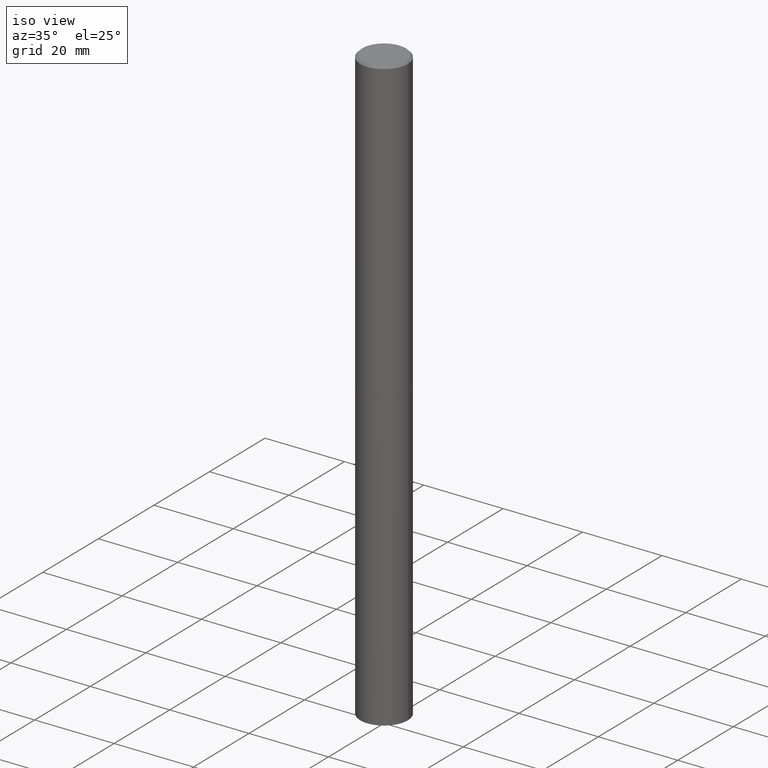
[diagram: clean part render]
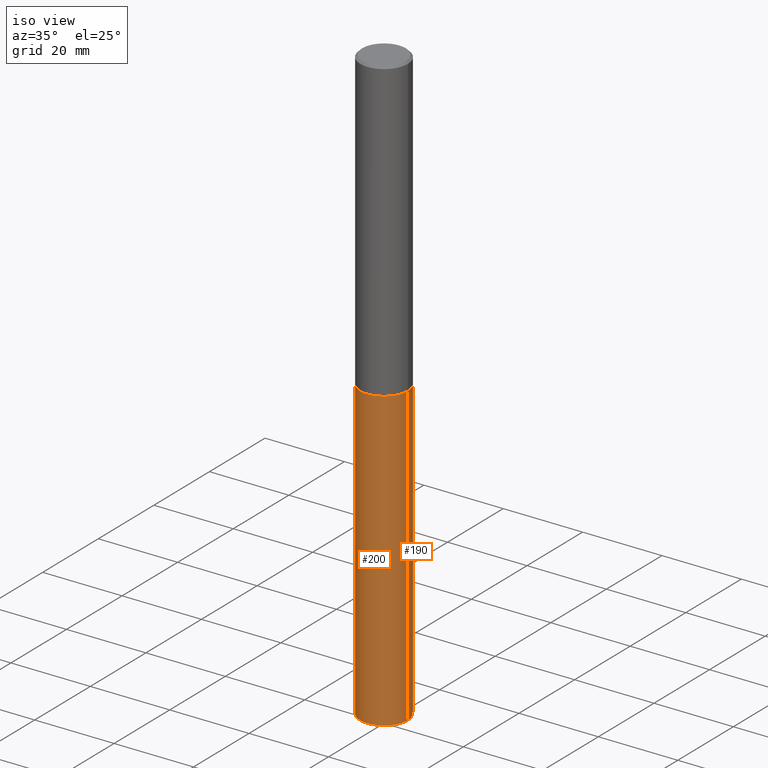
[diagram: same view with one multi-face feature highlighted, each face labeled with its STEP entity id]
A machine part, iso view. The highlighted faces form ONE feature: a constant-radius fillet chain: 2 tangent blend faces with common blend radius 5.9995 mm. The faces share edges in the B-rep.
Their STEP definitions:
[1] entity #200 (Cylinder):
#21 = VECTOR ( 'NONE', #56, 39.37007874015748143 ) ;
#24 = CARTESIAN_POINT ( 'NONE',  ( 0.000000000000000000, 0.000000000000000000, 0.000000000000000000 ) ) ;
#26 = DIRECTION ( 'NONE',  ( -2.445468806185136597E-29, 3.491481338843145583E-15, 1.000000000000000000 ) ) ;
#56 = DIRECTION ( 'NONE',  ( -2.445468806185136877E-29, 3.491481338843145188E-15, 1.000000000000000000 ) ) ;
#59 = AXIS2_PLACEMENT_3D ( 'NONE', #162, #255, #164 ) ;
#63 = EDGE_LOOP ( 'NONE', ( #174, #71, #72, #176 ) ) ;
#71 = ORIENTED_EDGE ( 'NONE', *, *, #147, .T. ) ;
#72 = ORIENTED_EDGE ( 'NONE', *, *, #142, .T. ) ;
#85 = CYLINDRICAL_SURFACE ( 'NONE', #128, 0.2361999999999999933 ) ;
#98 = VERTEX_POINT ( 'NONE', #254 ) ;
#102 = VERTEX_POINT ( 'NONE', #137 ) ;
#116 = LINE ( 'NONE', #138, #21 ) ;
#128 = AXIS2_PLACEMENT_3D ( 'NONE', #24, #328, #306 ) ;
#137 = CARTESIAN_POINT ( 'NONE',  ( 0.2361999999999999933, -1.195867273367164996E-14, -2.952700000000000102 ) ) ;
#138 = CARTESIAN_POINT ( 'NONE',  ( -0.2361999999999999933, 1.678301941865356591E-15, -1.161852468318208757E-29 ) ) ;
#142 = EDGE_CURVE ( 'NONE', #293, #102, #216, .T. ) ;
#147 = EDGE_CURVE ( 'NONE', #171, #293, #187, .T. ) ;
#156 = FACE_OUTER_BOUND ( 'NONE', #63, .T. ) ;
#162 = CARTESIAN_POINT ( 'NONE',  ( 1.444171603492632270E-28, -2.061894304653819197E-14, -5.905499999999999972 ) ) ;
#164 = DIRECTION ( 'NONE',  ( 1.000000000000000000, -6.982962677686273021E-15, 0.000000000000000000 ) ) ;
#166 = CARTESIAN_POINT ( 'NONE',  ( 0.2361999999999999933, -2.226831883100769165E-14, -5.905499999999999972 ) ) ;
#171 = VERTEX_POINT ( 'NONE', #186 ) ;
#174 = ORIENTED_EDGE ( 'NONE', *, *, #273, .F. ) ;
#176 = ORIENTED_EDGE ( 'NONE', *, *, #219, .F. ) ;
#186 = CARTESIAN_POINT ( 'NONE',  ( -0.2361999999999999933, -1.378581805600481631E-14, -5.905499999999999972 ) ) ;
#187 = CIRCLE ( 'NONE', #59, 0.2361999999999999933 ) ;
#200 = ADVANCED_FACE ( 'NONE', ( #156 ), #85, .T. ) ;
#216 = LINE ( 'NONE', #307, #286 ) ;
#218 = DIRECTION ( 'NONE',  ( 1.000000000000000000, -6.982962677686265133E-15, 0.000000000000000000 ) ) ;
#219 = EDGE_CURVE ( 'NONE', #98, #102, #338, .T. ) ;
#250 = DIRECTION ( 'NONE',  ( -2.445468806185136877E-29, 3.491481338843145188E-15, 1.000000000000000000 ) ) ;
#254 = CARTESIAN_POINT ( 'NONE',  ( -0.2361999999999999933, -1.378581805600481631E-14, -2.952700000000000102 ) ) ;
#255 = DIRECTION ( 'NONE',  ( -2.445468806185136597E-29, 3.491481338843145583E-15, 1.000000000000000000 ) ) ;
#273 = EDGE_CURVE ( 'NONE', #171, #98, #116, .T. ) ;
#280 = CARTESIAN_POINT ( 'NONE',  ( 7.220735744022852519E-29, -1.030929694920215502E-14, -2.952700000000000102 ) ) ;
#286 = VECTOR ( 'NONE', #250, 39.37007874015748143 ) ;
#293 = VERTEX_POINT ( 'NONE', #166 ) ;
#306 = DIRECTION ( 'NONE',  ( 1.000000000000000000, -6.982962677686266711E-15, 4.876176775795936353E-29 ) ) ;
#307 = CARTESIAN_POINT ( 'NONE',  ( 0.2361999999999999933, -1.649375784469496131E-15, 1.151752954443000088E-29 ) ) ;
#328 = DIRECTION ( 'NONE',  ( -2.445468806185136597E-29, 3.491481338843145583E-15, 1.000000000000000000 ) ) ;
#338 = CIRCLE ( 'NONE', #343, 0.2361999999999999933 ) ;
#343 = AXIS2_PLACEMENT_3D ( 'NONE', #280, #26, #218 ) ;
[2] entity #190 (Cylinder):
#9 = DIRECTION ( 'NONE',  ( -2.445468806185136597E-29, 3.491481338843145583E-15, 1.000000000000000000 ) ) ;
#21 = VECTOR ( 'NONE', #56, 39.37007874015748143 ) ;
#49 = DIRECTION ( 'NONE',  ( 1.000000000000000000, -6.982962677686266711E-15, 4.876176775795936353E-29 ) ) ;
#56 = DIRECTION ( 'NONE',  ( -2.445468806185136877E-29, 3.491481338843145188E-15, 1.000000000000000000 ) ) ;
#73 = CIRCLE ( 'NONE', #281, 0.2361999999999999933 ) ;
#98 = VERTEX_POINT ( 'NONE', #254 ) ;
#102 = VERTEX_POINT ( 'NONE', #137 ) ;
#109 = CARTESIAN_POINT ( 'NONE',  ( 0.000000000000000000, 0.000000000000000000, 0.000000000000000000 ) ) ;
#116 = LINE ( 'NONE', #138, #21 ) ;
#137 = CARTESIAN_POINT ( 'NONE',  ( 0.2361999999999999933, -1.195867273367164996E-14, -2.952700000000000102 ) ) ;
#138 = CARTESIAN_POINT ( 'NONE',  ( -0.2361999999999999933, 1.678301941865356591E-15, -1.161852468318208757E-29 ) ) ;
#142 = EDGE_CURVE ( 'NONE', #293, #102, #216, .T. ) ;
#166 = CARTESIAN_POINT ( 'NONE',  ( 0.2361999999999999933, -2.226831883100769165E-14, -5.905499999999999972 ) ) ;
#171 = VERTEX_POINT ( 'NONE', #186 ) ;
#172 = DIRECTION ( 'NONE',  ( 1.000000000000000000, -6.982962677686265133E-15, 0.000000000000000000 ) ) ;
#180 = EDGE_LOOP ( 'NONE', ( #270, #299, #323, #295 ) ) ;
#186 = CARTESIAN_POINT ( 'NONE',  ( -0.2361999999999999933, -1.378581805600481631E-14, -5.905499999999999972 ) ) ;
#188 = AXIS2_PLACEMENT_3D ( 'NONE', #313, #9, #172 ) ;
#190 = ADVANCED_FACE ( 'NONE', ( #304 ), #222, .T. ) ;
#196 = DIRECTION ( 'NONE',  ( -2.445468806185136597E-29, 3.491481338843145583E-15, 1.000000000000000000 ) ) ;
#197 = AXIS2_PLACEMENT_3D ( 'NONE', #109, #365, #49 ) ;
#216 = LINE ( 'NONE', #307, #286 ) ;
#222 = CYLINDRICAL_SURFACE ( 'NONE', #197, 0.2361999999999999933 ) ;
#243 = EDGE_CURVE ( 'NONE', #293, #171, #73, .T. ) ;
#250 = DIRECTION ( 'NONE',  ( -2.445468806185136877E-29, 3.491481338843145188E-15, 1.000000000000000000 ) ) ;
#254 = CARTESIAN_POINT ( 'NONE',  ( -0.2361999999999999933, -1.378581805600481631E-14, -2.952700000000000102 ) ) ;
#261 = CIRCLE ( 'NONE', #188, 0.2361999999999999933 ) ;
#262 = DIRECTION ( 'NONE',  ( 1.000000000000000000, -6.982962677686273021E-15, 0.000000000000000000 ) ) ;
#270 = ORIENTED_EDGE ( 'NONE', *, *, #243, .T. ) ;
#273 = EDGE_CURVE ( 'NONE', #171, #98, #116, .T. ) ;
#281 = AXIS2_PLACEMENT_3D ( 'NONE', #289, #196, #262 ) ;
#286 = VECTOR ( 'NONE', #250, 39.37007874015748143 ) ;
#289 = CARTESIAN_POINT ( 'NONE',  ( 1.444171603492632270E-28, -2.061894304653819197E-14, -5.905499999999999972 ) ) ;
#293 = VERTEX_POINT ( 'NONE', #166 ) ;
#295 = ORIENTED_EDGE ( 'NONE', *, *, #142, .F. ) ;
#297 = EDGE_CURVE ( 'NONE', #102, #98, #261, .T. ) ;
#299 = ORIENTED_EDGE ( 'NONE', *, *, #273, .T. ) ;
#304 = FACE_OUTER_BOUND ( 'NONE', #180, .T. ) ;
#307 = CARTESIAN_POINT ( 'NONE',  ( 0.2361999999999999933, -1.649375784469496131E-15, 1.151752954443000088E-29 ) ) ;
#313 = CARTESIAN_POINT ( 'NONE',  ( 7.220735744022852519E-29, -1.030929694920215502E-14, -2.952700000000000102 ) ) ;
#323 = ORIENTED_EDGE ( 'NONE', *, *, #297, .F. ) ;
#365 = DIRECTION ( 'NONE',  ( -2.445468806185136597E-29, 3.491481338843145583E-15, 1.000000000000000000 ) ) ;